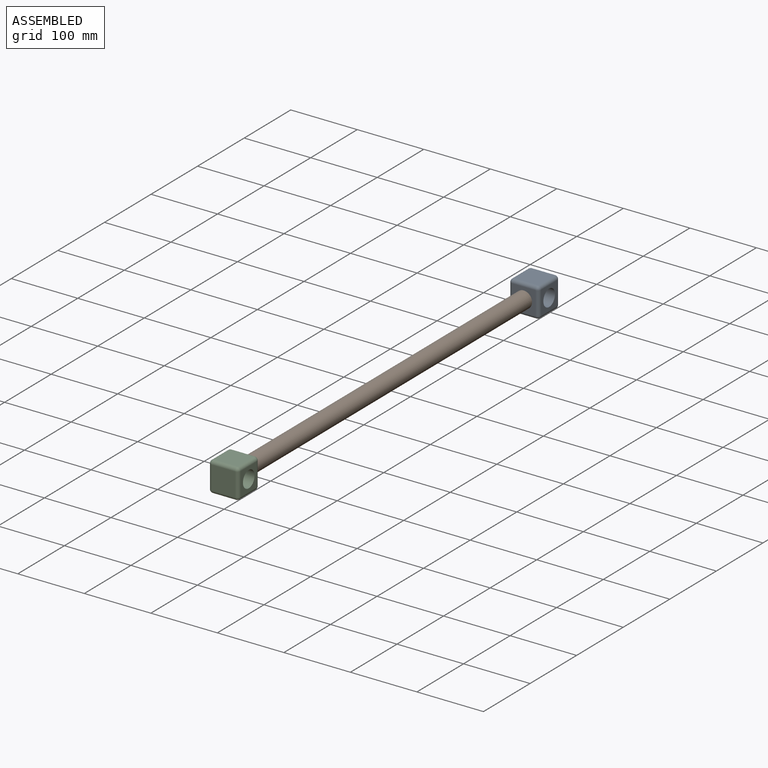
[diagram: assembled view]
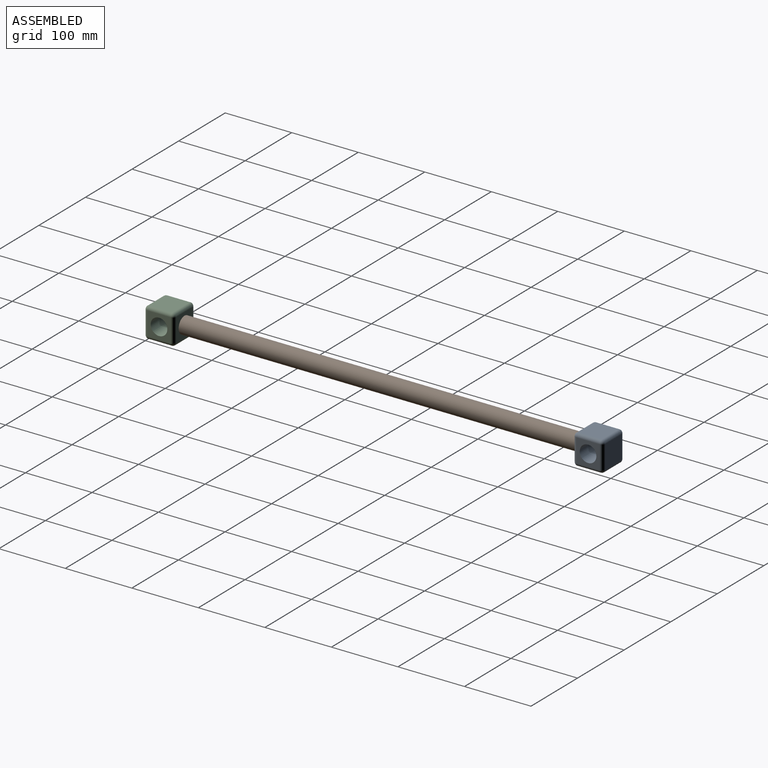
[diagram: assembled view, second angle]
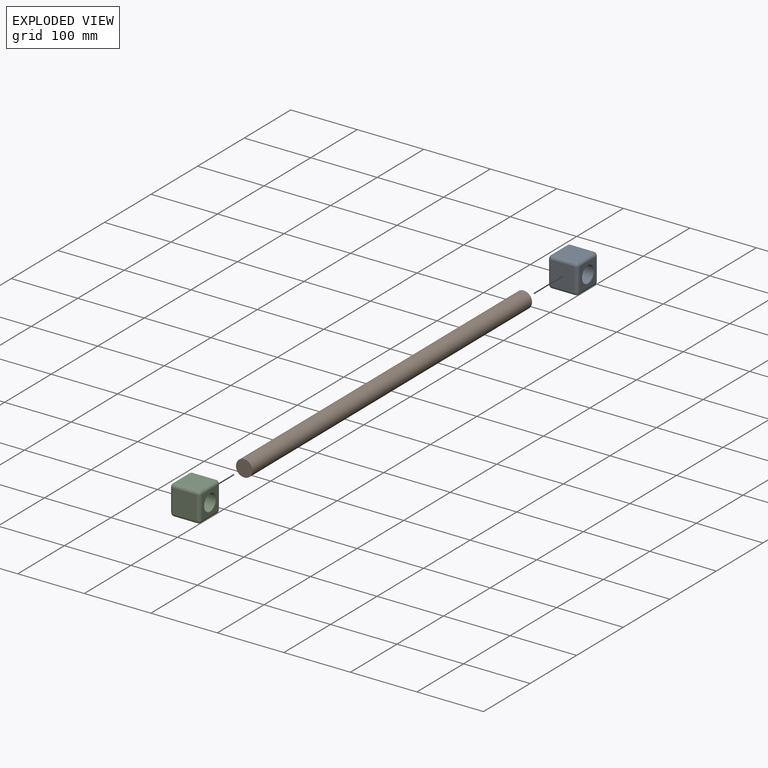
[diagram: exploded view]
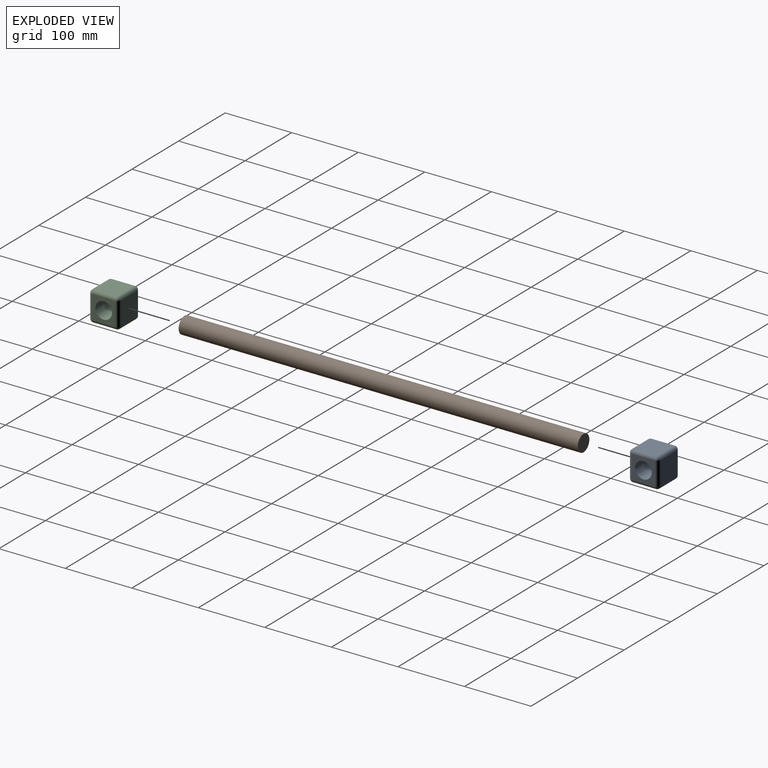
[diagram: exploded view, second angle]
ASSEMBLY  parts=3 mates=2
PART A: 27 faces, bbox 45x45x45 mm
  f0: plane 35x35mm, normal (1,0,0), area 1225mm2, adj f14,f19,f22,f25
  f1: plane 35x35mm, normal (0,0,1), area 1225mm2, adj f11,f20,f21,f25
  f2: plane 35x35mm, normal (-1,0,0), area 1225mm2, adj f6,f10,f11,f12
  f3: plane 35x35mm, normal (0,0,-1), area 1225mm2, adj f6,f9,f13,f14
  f4: plane 35x35mm, normal (0,-1,0), area 734.1mm2, adj f9,f10,f19,f20,f26
  f5: plane 35x35mm, normal (0,1,0), area 734.1mm2, adj f12,f13,f21,f22,f26
  f6: cylinder r=5mm len=35mm, axis (0,1,0), area 274.9mm2, adj f2,f3,f7,f8
  f7: sphere r=5mm, area 39.3mm2, adj f6,f9,f10
  f8: sphere r=5mm, area 39.3mm2, adj f6,f12,f13
  f9: cylinder r=5mm len=35mm, axis (-1,0,0), area 274.9mm2, adj f3,f4,f7,f15
  f10: cylinder r=5mm len=35mm, axis (0,0,1), area 274.9mm2, adj f2,f4,f7,f16
  f11: cylinder r=5mm len=35mm, axis (0,-1,0), area 274.9mm2, adj f1,f2,f16,f17
  f12: cylinder r=5mm len=35mm, axis (0,0,-1), area 274.9mm2, adj f2,f5,f8,f17
  f13: cylinder r=5mm len=35mm, axis (1,0,0), area 274.9mm2, adj f3,f5,f8,f18
  f14: cylinder r=5mm len=35mm, axis (0,-1,0), area 274.9mm2, adj f0,f3,f15,f18
  f15: sphere r=5mm, area 39.3mm2, adj f9,f14,f19
  f16: sphere r=5mm, area 39.3mm2, adj f10,f11,f20
  f17: sphere r=5mm, area 39.3mm2, adj f11,f12,f21
  f18: sphere r=5mm, area 39.3mm2, adj f13,f14,f22
  f19: cylinder r=5mm len=35mm, axis (0,0,-1), area 274.9mm2, adj f0,f4,f15,f23
  f20: cylinder r=5mm len=35mm, axis (1,0,0), area 274.9mm2, adj f1,f4,f16,f23
  f21: cylinder r=5mm len=35mm, axis (-1,0,0), area 274.9mm2, adj f1,f5,f17,f24
  f22: cylinder r=5mm len=35mm, axis (0,0,1), area 274.9mm2, adj f0,f5,f18,f24
  f23: sphere r=5mm, area 39.3mm2, adj f19,f20,f25
  f24: sphere r=5mm, area 39.3mm2, adj f21,f22,f25
  f25: cylinder r=5mm len=35mm, axis (0,1,0), area 274.9mm2, adj f0,f1,f23,f24
  f26: cylinder r=12.5mm len=45mm, axis (0,-1,0), area 3534.3mm2, adj f4,f5
PART B: 3 faces, bbox 600x25x25 mm
  f0: cylinder r=12.5mm len=600mm, axis (-1,0,0), area 47123.9mm2, adj f1,f2
  f1: plane 25x25mm, normal (1,0,0), area 490.9mm2, adj f0
  f2: plane 25x25mm, normal (-1,0,0), area 490.9mm2, adj f0
PART C: same geometry as A
PLACE A rot(axis=(0,0,-1),90deg) t=(115.19,353.83,-21.79)mm
PLACE B rot(axis=(0,0,1),90deg) t=(92.69,-246.17,0.71)mm
PLACE C rot(axis=(0,0,-1),90deg) t=(115.19,-291.17,-21.79)mm
MATE fastened B.f0 <-> C.f2  axis (0,-1,0) through (92.69,-246.17,0.71)mm
MATE fastened B.f0 <-> A.f0  axis (0,-1,0) through (92.69,353.83,0.71)mm
